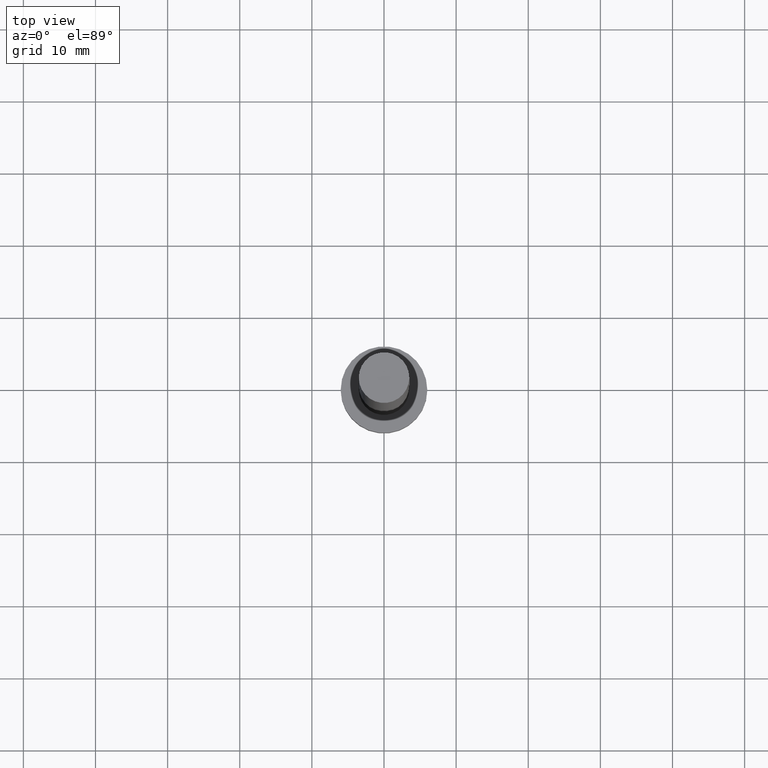
[diagram: clean part render]
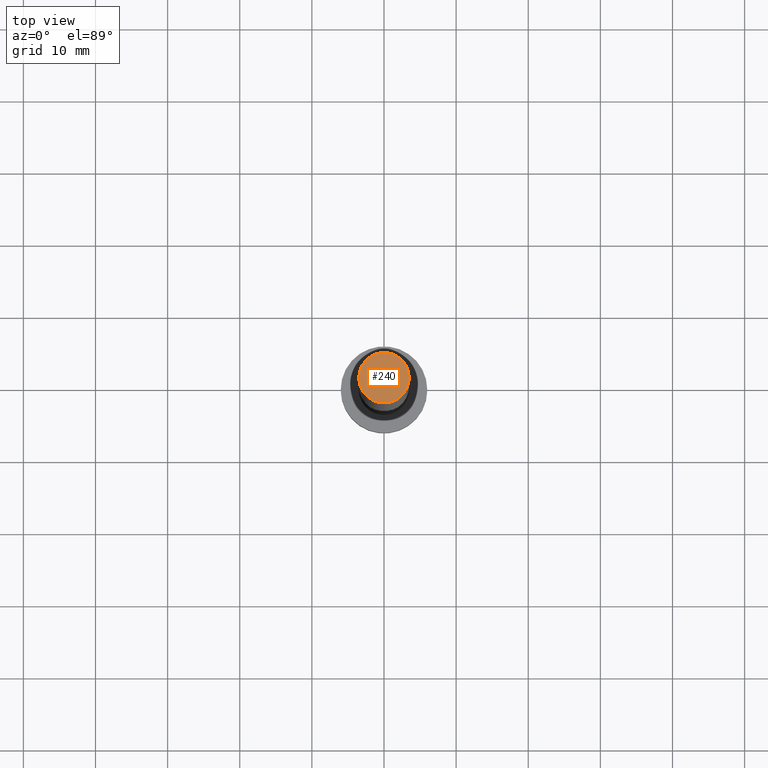
[diagram: same view with one face highlighted and labeled with its STEP entity id]
A machine part, top view. The second image highlights one B-rep face of the part: STEP entity #240.
In plain terms, the highlighted planar face has unit normal (0, 0, 1).
Its self-contained STEP definition (entity closure, byte-faithful):
#2 = ORIENTED_EDGE ( 'NONE', *, *, #59, .T. ) ;
#8 = AXIS2_PLACEMENT_3D ( 'NONE', #114, #93, #191 ) ;
#11 = DIRECTION ( 'NONE',  ( 0.000000000000000000, 0.000000000000000000, 1.000000000000000000 ) ) ;
#13 = CARTESIAN_POINT ( 'NONE',  ( 0.000000000000000000, 0.000000000000000000, 100.0000000000000000 ) ) ;
#30 = CIRCLE ( 'NONE', #209, 3.500000000000000000 ) ;
#32 = PLANE ( 'NONE',  #8 ) ;
#50 = CARTESIAN_POINT ( 'NONE',  ( 0.000000000000000000, 0.000000000000000000, 100.0000000000000000 ) ) ;
#59 = EDGE_CURVE ( 'NONE', #112, #241, #30, .T. ) ;
#71 = DIRECTION ( 'NONE',  ( 0.000000000000000000, 0.000000000000000000, 1.000000000000000000 ) ) ;
#73 = DIRECTION ( 'NONE',  ( 1.000000000000000000, 0.000000000000000000, 0.000000000000000000 ) ) ;
#76 = DIRECTION ( 'NONE',  ( 1.000000000000000000, 0.000000000000000000, 0.000000000000000000 ) ) ;
#93 = DIRECTION ( 'NONE',  ( 0.000000000000000000, 0.000000000000000000, 1.000000000000000000 ) ) ;
#112 = VERTEX_POINT ( 'NONE', #238 ) ;
#114 = CARTESIAN_POINT ( 'NONE',  ( 0.000000000000000000, 0.000000000000000000, 100.0000000000000000 ) ) ;
#122 = EDGE_LOOP ( 'NONE', ( #189, #2 ) ) ;
#143 = AXIS2_PLACEMENT_3D ( 'NONE', #13, #11, #76 ) ;
#171 = CIRCLE ( 'NONE', #143, 3.500000000000000000 ) ;
#174 = CARTESIAN_POINT ( 'NONE',  ( -3.500000000000000000, 0.000000000000000000, 100.0000000000000000 ) ) ;
#181 = EDGE_CURVE ( 'NONE', #241, #112, #171, .T. ) ;
#189 = ORIENTED_EDGE ( 'NONE', *, *, #181, .T. ) ;
#191 = DIRECTION ( 'NONE',  ( 1.000000000000000000, 0.000000000000000000, -0.000000000000000000 ) ) ;
#209 = AXIS2_PLACEMENT_3D ( 'NONE', #50, #71, #73 ) ;
#231 = FACE_OUTER_BOUND ( 'NONE', #122, .T. ) ;
#238 = CARTESIAN_POINT ( 'NONE',  ( 3.500000000000000000, 4.286263797015736595E-16, 100.0000000000000000 ) ) ;
#240 = ADVANCED_FACE ( 'NONE', ( #231 ), #32, .T. ) ;
#241 = VERTEX_POINT ( 'NONE', #174 ) ;